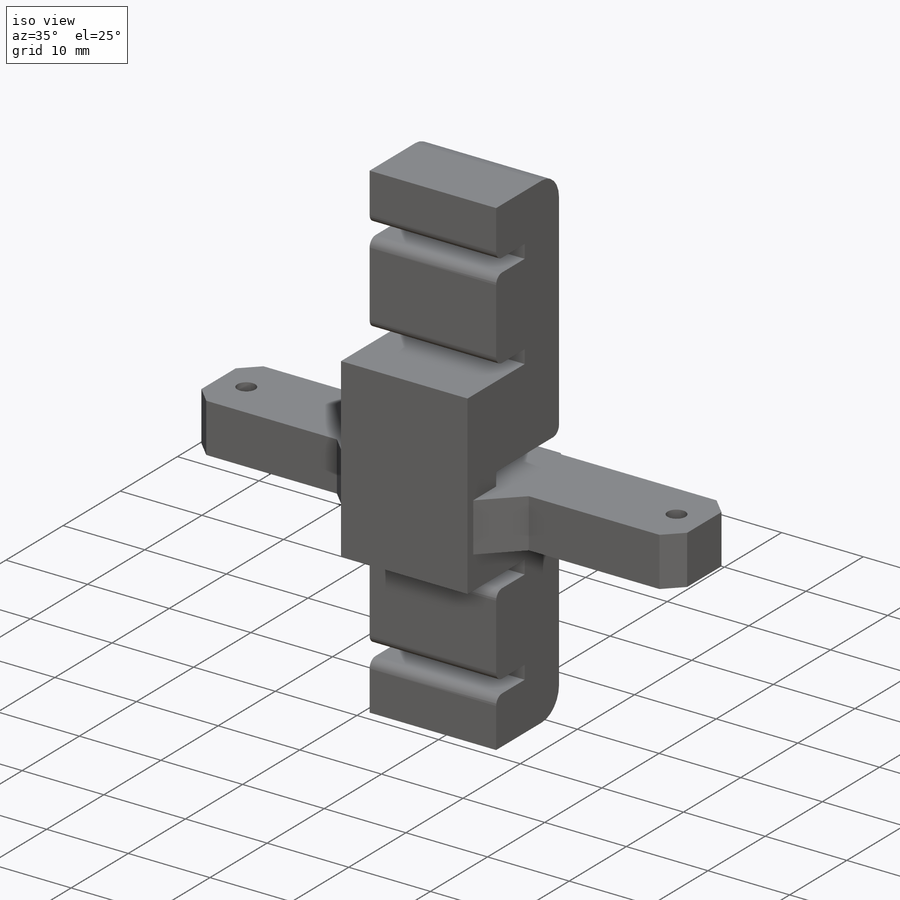
[diagram: iso view]
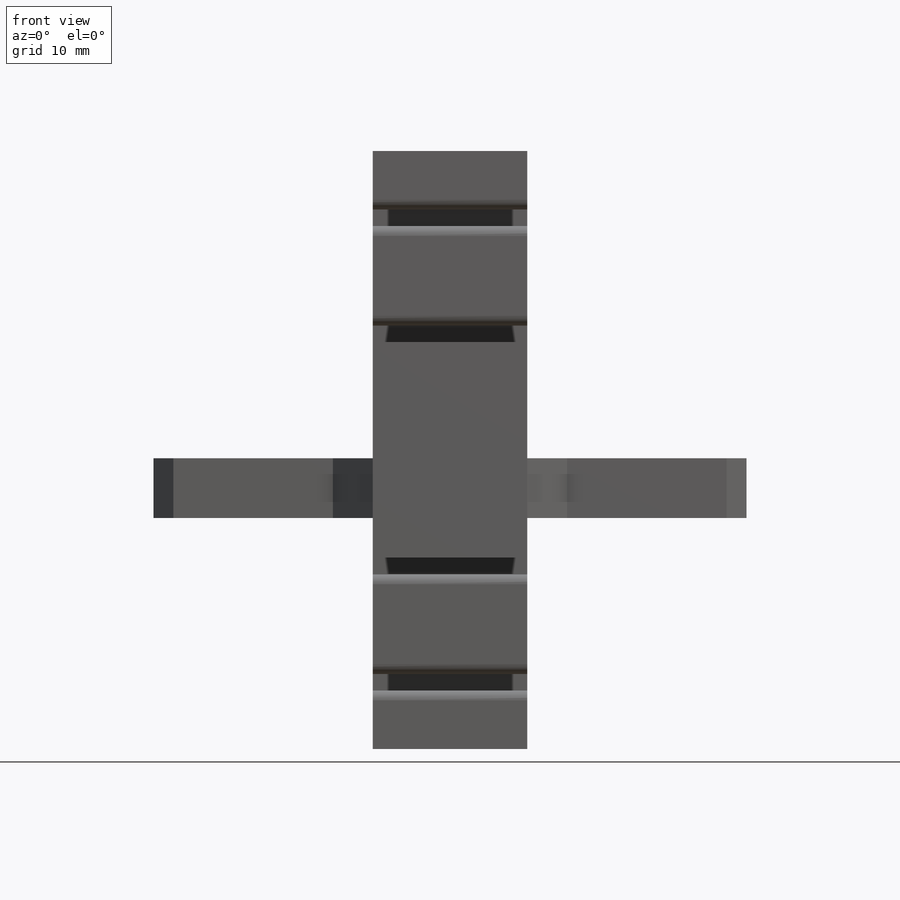
[diagram: front view]
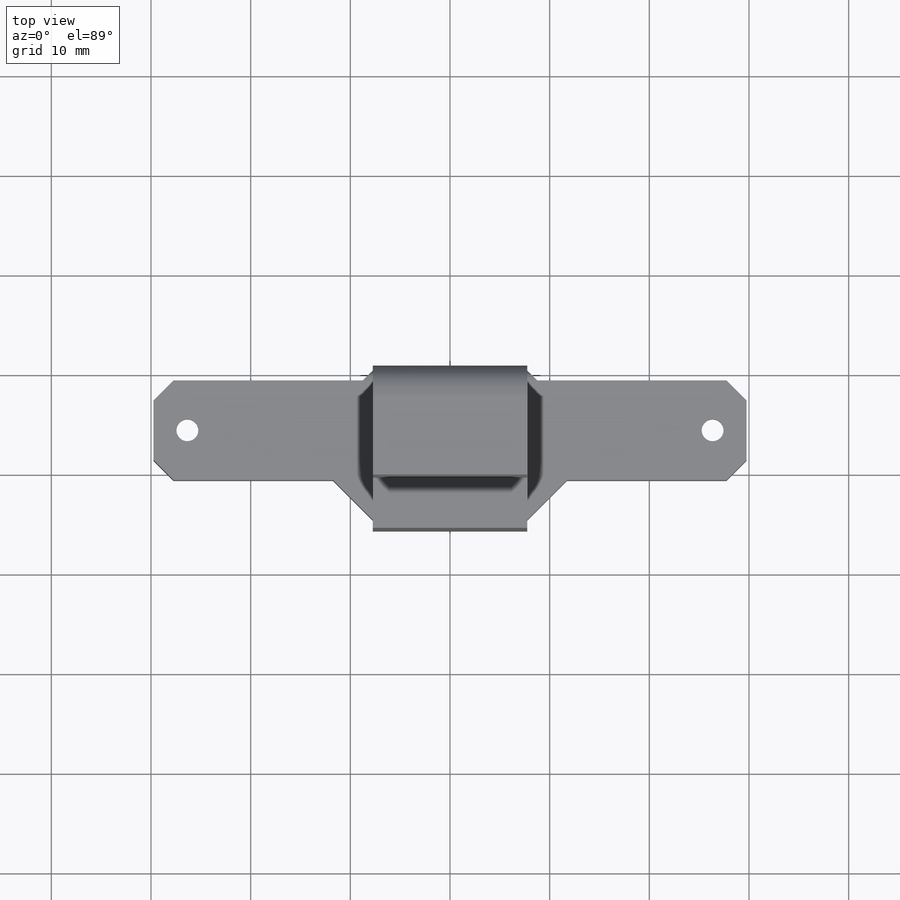
[diagram: top view]
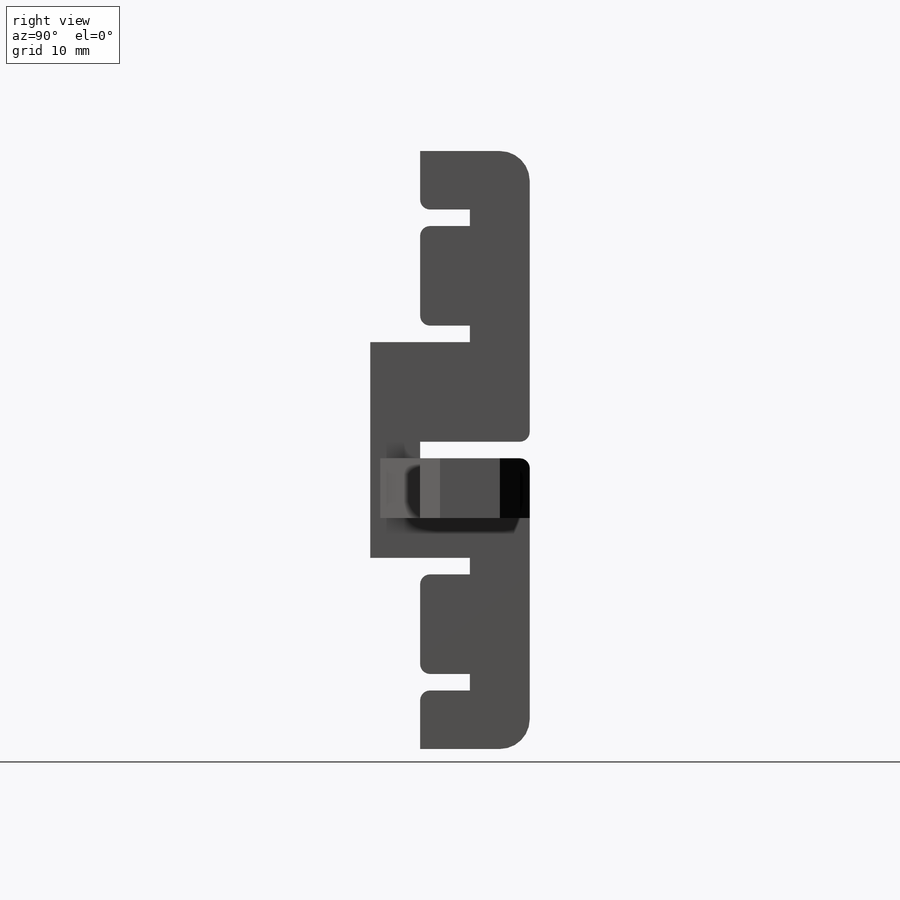
[diagram: right view]
SOLIDWORKS PART (.sldprt)
format: sldprt  version: not decoded by parser v0  size: 575,488 bytes
history: native  units: mm
features: sketch x13, cut_extrude x7, extrude x4, chamfer x3, fillet x2, material x1, hole x1, mirror x1 (+12 scaffold rows collapsed)
feature tree (44):
  scaffold x12  (default folders/planes/origin — collapsed)
  material  "ABS"
  sketch  "Sketch1"  dims[D1=60.0mm D2=15.5mm]
  extrude  "Boss-Extrude1"  Depth=8mm
  sketch  "Sketch2"  dims[D1=1.65mm D2=10.0mm D3=10.0mm]
  cut_extrude  "Cut-Extrude1"  Depth=2mm
  sketch  "Sketch4"
  cut_extrude  "Cut-Extrude2"  Depth=5mm
  sketch  "Sketch5"  dims[D1=3.0mm D2=8.0mm D3=18.7mm]
  extrude  "Boss-Extrude2"  [1 undecoded]
  sketch  "Sketch7"
  cut_extrude  "Cut-Extrude3"  Depth=18mm
  sketch  "Sketch8"  dims[D1=0.0mm D2=0.0mm]
  extrude  "Boss-Extrude3"  Depth=3mm
  fillet  "Fillet2"  Radius=1mm
  fillet  "Fillet3"  Radius=3mm
  sketch  "Sketch9"  dims[D1=10.0mm D2=6.0mm]
  extrude  "Boss-Extrude4"  Depth=22mm
  chamfer  "Chamfer2"  Distance=4mm Angle=45deg
  sketch  "Sketch10"  dims[c1.D1=~3.458592mm c1.D2=3.9mm c2.D1=52.7mm]
  cut_extrude  "Cut-Extrude4"  Depth=4mm
  hole  "M2 Clearance Hole1"  Diameter=2.2mm Depth=10mm
  sketch  "Sketch12"
  sketch  "Sketch11"  dims[hole-wizard template sketch: 47 standard entries collapsed; hole parameters kept: c15.Hole Depth=10.0mm c15.D3=~14.816244mm c15.Drill Angle=180.0deg]
  mirror  "Mirror4"
  sketch  "Sketch13"  dims[D1=1.5mm D2=3.5mm D3=7.0mm]
  cut_extrude  "Cut-Extrude5"  Depth=5mm
  chamfer  "Chamfer3"  Distance=1mm Angle=45deg
  chamfer  "Chamfer4"  Distance=2mm Angle=45deg
  sketch  "Sketch15"  dims[D1=0.0mm D2=2.0mm]
  cut_extrude  "Cut-Extrude7"  Depth=13mm
  sketch  "Sketch16"  dims[D1=0.0mm D2=2.0mm]
  cut_extrude  "Cut-Extrude8"  Depth=13mm
decode coverage: 26 of 31 modeling features carry decoded parameters
note: ~ marks probable driven/reference dimensions
note: 1 parameter value undecoded
note: suppression state not decoded; provenance and decode notes live in map.json
